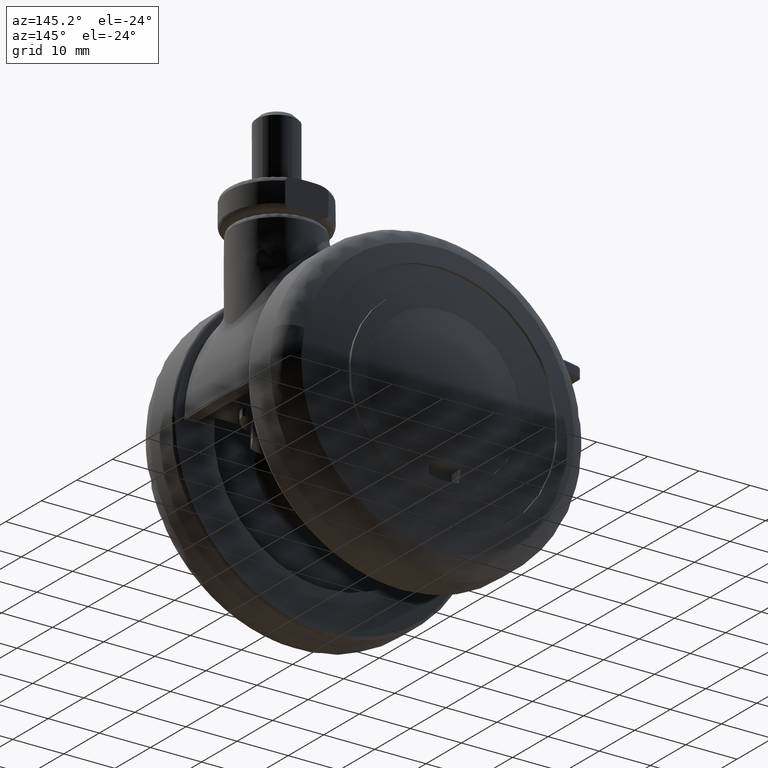
[diagram: clean part render]
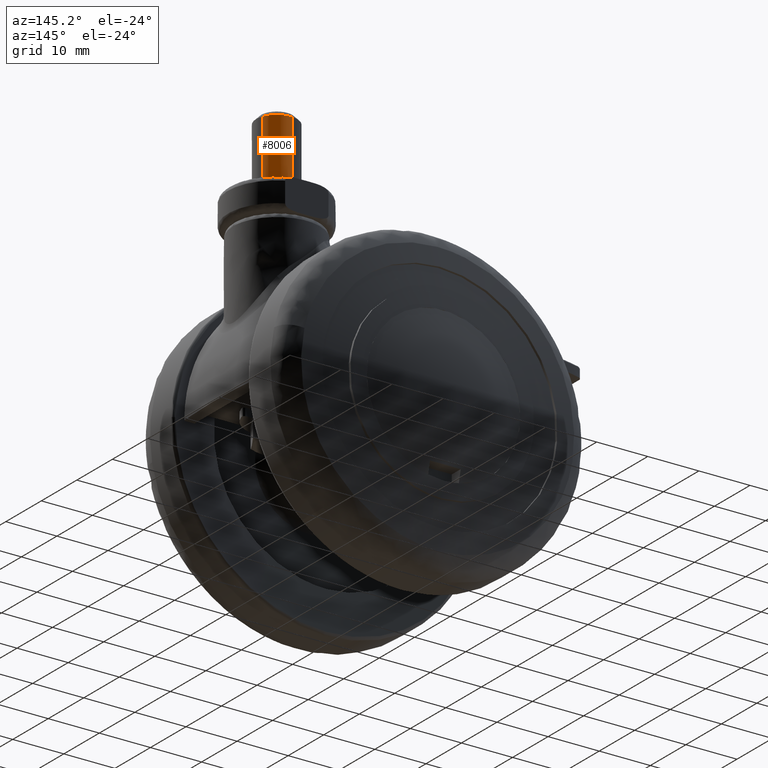
[diagram: same view with one face highlighted and labeled with its STEP entity id]
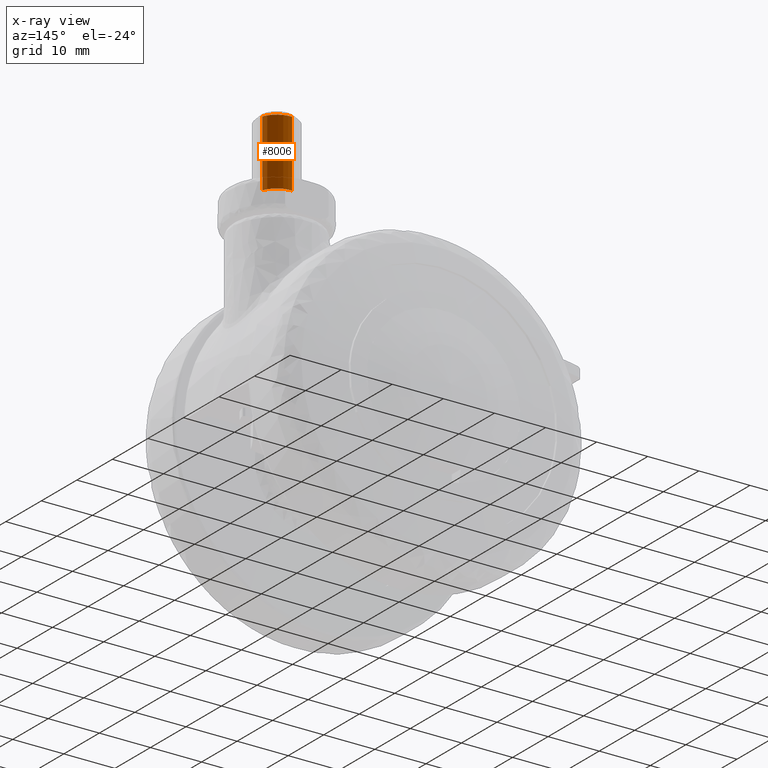
[diagram: x-ray of the same camera — body ghosted, the highlighted face saturated]
A machine part, auxiliary view. The second image highlights one B-rep face of the part: STEP entity #8006.
The next image is the same camera in x-ray: the body ghosted, the highlighted face saturated — about 0% of this face is hidden behind the body in this view.
In plain terms, the highlighted face is a freeform B-spline surface patch.
Its self-contained STEP definition (entity closure, byte-faithful):
#7817=CARTESIAN_POINT('',(20.744574298804920,1.406471940967762,51.500000000000000));
#7818=VERTEX_POINT('',#7817);
#7881=CARTESIAN_POINT('',(16.755809754342291,3.992539432981252,51.500000000000000));
#7882=VERTEX_POINT('',#7881);
#7896=CARTESIAN_POINT('',(16.755805841640679,3.992539193674018,38.500000000000000));
#7897=VERTEX_POINT('',#7896);
#7898=CARTESIAN_POINT('',(16.755809754342291,3.992539432981252,51.500000000000000));
#7899=CARTESIAN_POINT('',(16.755805841640679,3.992539193674018,38.500000000000000));
#7900=QUASI_UNIFORM_CURVE('',1,(#7898,#7899),.UNSPECIFIED.,.F.,.U.);
#7901=EDGE_CURVE('',#7882,#7897,#7900,.T.);
#7935=CARTESIAN_POINT('',(20.744574298804920,1.406471940967762,38.500000000000000));
#7936=VERTEX_POINT('',#7935);
#7950=CARTESIAN_POINT('',(20.744574298804920,1.406471940967762,51.500000000000000));
#7951=CARTESIAN_POINT('',(20.744574298804920,1.406471940967762,38.500000000000000));
#7952=QUASI_UNIFORM_CURVE('',1,(#7950,#7951),.UNSPECIFIED.,.F.,.U.);
#7953=EDGE_CURVE('',#7818,#7936,#7952,.T.);
#7958=CARTESIAN_POINT('',(16.755805841860571,3.992539193687467,51.825000000000010));
#7959=CARTESIAN_POINT('',(19.705478327212258,4.172948891477367,51.825000000000010));
#7960=CARTESIAN_POINT('',(20.744574315106625,1.406471897566288,51.825000000000010));
#7961=CARTESIAN_POINT('',(16.755805841860571,3.992539193687467,38.166874999999990));
#7962=CARTESIAN_POINT('',(19.705478327212258,4.172948891477367,38.166874999999997));
#7963=CARTESIAN_POINT('',(20.744574315106625,1.406471897566288,38.166874999999990));
#7971=(BOUNDED_SURFACE()B_SPLINE_SURFACE(2,1,((#7958,#7961),(#7959,#7962),(#7960,#7963)),.UNSPECIFIED.,.F.,.F.,.U.)B_SPLINE_SURFACE_WITH_KNOTS((3,3),(2,2),(0.0,5.265794895546581),(0.0,13.658125000000020),.UNSPECIFIED.)GEOMETRIC_REPRESENTATION_ITEM()RATIONAL_B_SPLINE_SURFACE(((1.0,1.0),(0.765685424949238,0.765685424949238),(0.906274169979695,0.906274169979695)))REPRESENTATION_ITEM('')SURFACE());
#7972=CARTESIAN_POINT('',(16.755809754342295,3.992539432981253,51.500000000000000));
#7973=CARTESIAN_POINT('',(16.877790908531466,4.0,51.499999999999993));
#7974=CARTESIAN_POINT('',(17.0,4.0,51.500000000000000));
#7975=CARTESIAN_POINT('',(19.770438314175482,4.0,51.500000000000014));
#7976=CARTESIAN_POINT('',(20.744574298804920,1.406471940967762,51.500000000000000));
#7984=(BOUNDED_CURVE()B_SPLINE_CURVE(2,(#7972,#7973,#7974,#7975,#7976),.UNSPECIFIED.,.F.,.U.)B_SPLINE_CURVE_WITH_KNOTS((3,2,3),(0.239333131328911,0.250000000000000,0.440284167237474),.UNSPECIFIED.)CURVE()GEOMETRIC_REPRESENTATION_ITEM()RATIONAL_B_SPLINE_CURVE((0.976072404058975,0.987502986001057,1.0,0.777068231074316,0.893499550155038))REPRESENTATION_ITEM(''));
#7985=EDGE_CURVE('',#7882,#7818,#7984,.T.);
#7986=ORIENTED_EDGE('',*,*,#7985,.T.);
#7987=ORIENTED_EDGE('',*,*,#7953,.T.);
#7988=CARTESIAN_POINT('',(16.755805841640679,3.992539193674018,38.500000000000007));
#7989=CARTESIAN_POINT('',(16.877788946585131,4.000000000000001,38.500000000000007));
#7990=CARTESIAN_POINT('',(17.0,4.0,38.500000000000000));
#7991=CARTESIAN_POINT('',(19.770438314175482,4.000000000000000,38.500000000000000));
#7992=CARTESIAN_POINT('',(20.744574298804920,1.406471940967762,38.500000000000000));
#8000=(BOUNDED_CURVE()B_SPLINE_CURVE(2,(#7988,#7989,#7990,#7991,#7992),.UNSPECIFIED.,.F.,.U.)B_SPLINE_CURVE_WITH_KNOTS((3,2,3),(0.739332962222962,0.750000000000000,0.940284167237474),.UNSPECIFIED.)CURVE()GEOMETRIC_REPRESENTATION_ITEM()RATIONAL_B_SPLINE_CURVE((0.976072041632468,0.987502787881115,1.0,0.777068231074315,0.893499550155038))REPRESENTATION_ITEM(''));
#8001=EDGE_CURVE('',#7897,#7936,#8000,.T.);
#8002=ORIENTED_EDGE('',*,*,#8001,.F.);
#8003=ORIENTED_EDGE('',*,*,#7901,.F.);
#8004=EDGE_LOOP('',(#7986,#7987,#8002,#8003));
#8005=FACE_OUTER_BOUND('',#8004,.T.);
#8006=ADVANCED_FACE('',(#8005),#7971,.T.);